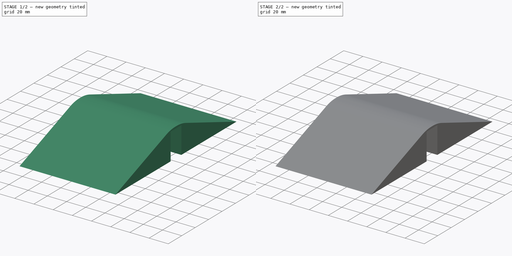
[diagram: build sequence overview — one tinted view per stage of 2, left to right]
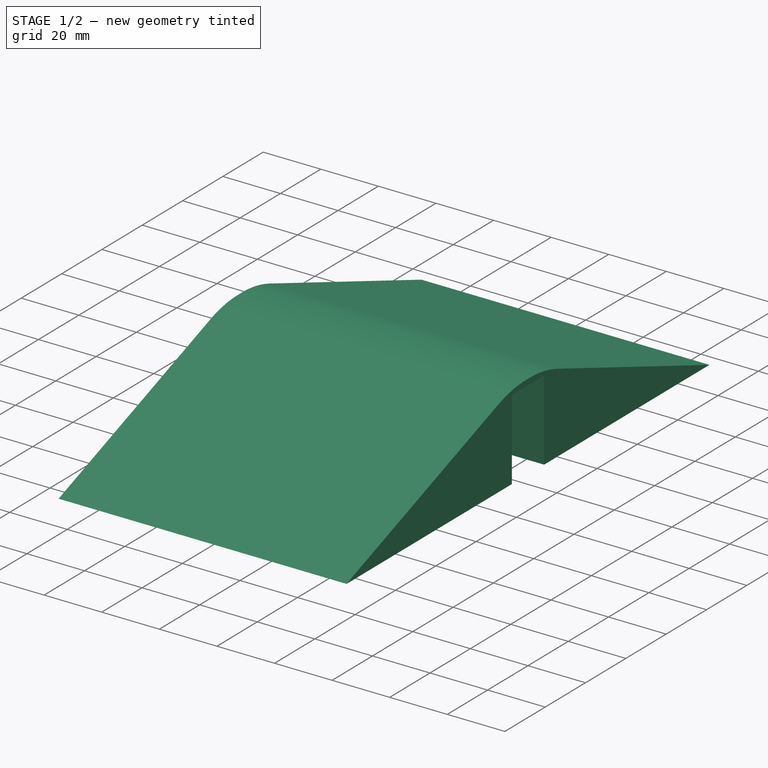
[diagram: stage 1 of 2 — iso view after this stage's code; geometry added in this stage tinted green]
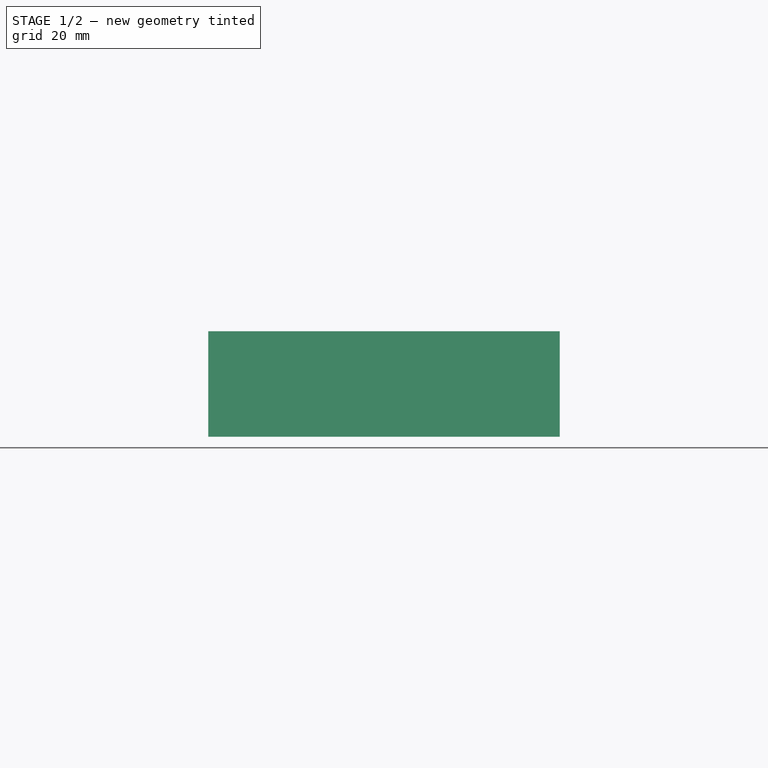
[diagram: stage 1 of 2 — front view after this stage's code; geometry added in this stage tinted green]
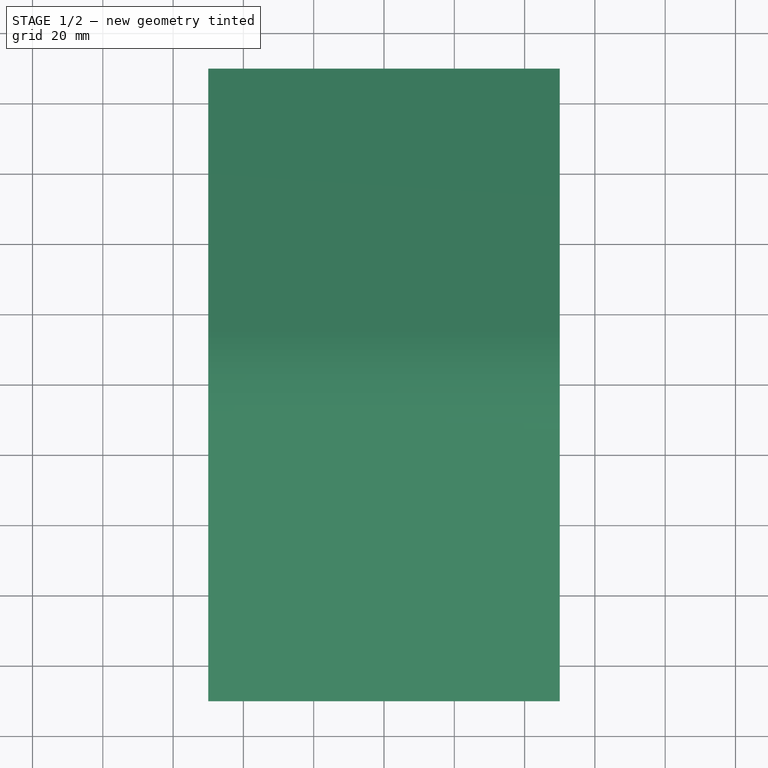
[diagram: stage 1 of 2 — top view after this stage's code; geometry added in this stage tinted green]
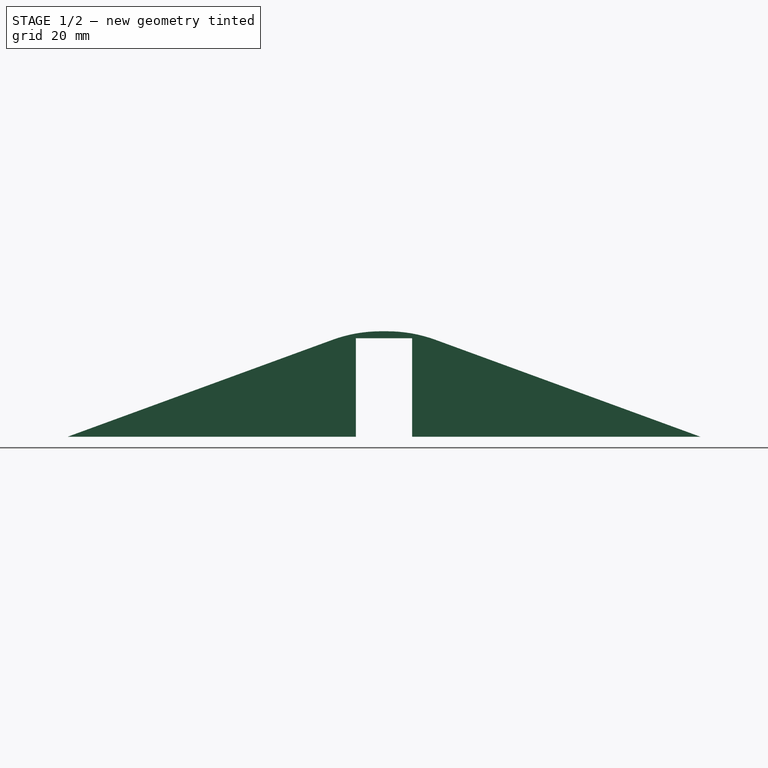
[diagram: stage 1 of 2 — right view after this stage's code; geometry added in this stage tinted green]
FCSTD DOCUMENT  (FreeCAD 0.19R22756 (Git))
Label: ikea-jonaxel-slope
License: All rights reserved
LicenseURL: http://en.wikipedia.org/wiki/All_rights_reserved
objects: Sketcher::SketchObject×2, PartDesign::Pad×2, PartDesign::Fillet×2, PartDesign::Body×2
note: 12 computed .brp shape members not serialized (recipe doc carries the construction recipe); baked Part::Feature solids carry a one-line shape summary decoded from their .brp

FEATURE [PartDesign::Body] Body  label="30deg"
  Group = -> [Sketch,Pad,Fillet]
  Origin = -> Origin
  Tip = -> Fillet
FEATURE [Sketcher::SketchObject] Sketch001
  MapMode = 5
  Placement = pos=(0,0,0) rot=(0.57735,0.57735,0.57735;2.0944rad)
  Support = -> [YZ_Plane001]
  expr: Constraints[15] = -Constraints[14] / 2
  sketch-geometry (8):
    g0: LineSegment StartX=-90 StartY=0 StartZ=0 EndX=-8 EndY=0 EndZ=0
    g1: LineSegment StartX=-8 StartY=0 StartZ=0 EndX=-8 EndY=28 EndZ=0
    g2: LineSegment StartX=-8 StartY=28 StartZ=0 EndX=8 EndY=28 EndZ=0
    g3: LineSegment StartX=8 StartY=28 StartZ=0 EndX=8 EndY=0 EndZ=0
    g4: LineSegment StartX=8 StartY=0 StartZ=0 EndX=90 EndY=0 EndZ=0
    g5: LineSegment StartX=-8 StartY=30 StartZ=0 EndX=-90 EndY=0 EndZ=0
    g6: LineSegment StartX=8 StartY=30 StartZ=0 EndX=90 EndY=0 EndZ=0
    g7: LineSegment StartX=-8 StartY=30 StartZ=0 EndX=8 EndY=30 EndZ=0
  constraints (24):
    c: PointOnObject(g0,g-1)
    c: PointOnObject(g0,g-1)
    c: Coincident(g1,g0)
    c: Vertical(g1)
    c: Coincident(g2,g1)
    c: Horizontal(g2)
    c: Coincident(g3,g2)
    c: PointOnObject(g3,g-1)
    c: Vertical(g3)
    c: Coincident(g4,g3)
    c: PointOnObject(g4,g-1)
    c: Coincident(g5,g0)
    c: Coincident(g6,g4)
    c: Equal(g0,g4)
    c: Distance(g0,g3) = 16
    c: DistanceX(g-2,g0) = -8
    c: DistanceY(g-1,g5) = 30
    c: Distance(g5,g2) = 2
    c: Equal(g5,g6)
    c: Coincident(g5,g7)
    c: Coincident(g6,g7)
    c: Parallel(g7,g2)
    c: Vertical(g5,g1)
    c: DistanceX(g0,g4) = 180
FEATURE [PartDesign::Pad] Pad001
  Direction = (1,1,1)
  Length = 100
  Length2 = 100
  Midplane = true
  Placement = pos=(0,0,0) rot=(0.57735,0.57735,0.57735;2.0944rad)
  Profile = -> Sketch001
  Type = 0
FEATURE [PartDesign::Fillet] Fillet001
  Base = -> Pad001 [Edge20,Edge17]
  BaseFeature = -> Pad001
  Placement = pos=(0,0,0) rot=(0.57735,0.57735,0.57735;2.0944rad)
  Radius = 40
  SupportTransform = false
FEATURE [PartDesign::Body] Body001  label="15deg"
  Group = -> [Sketch001,Pad001,Fillet001]
  Origin = -> Origin001
  Tip = -> Fillet001
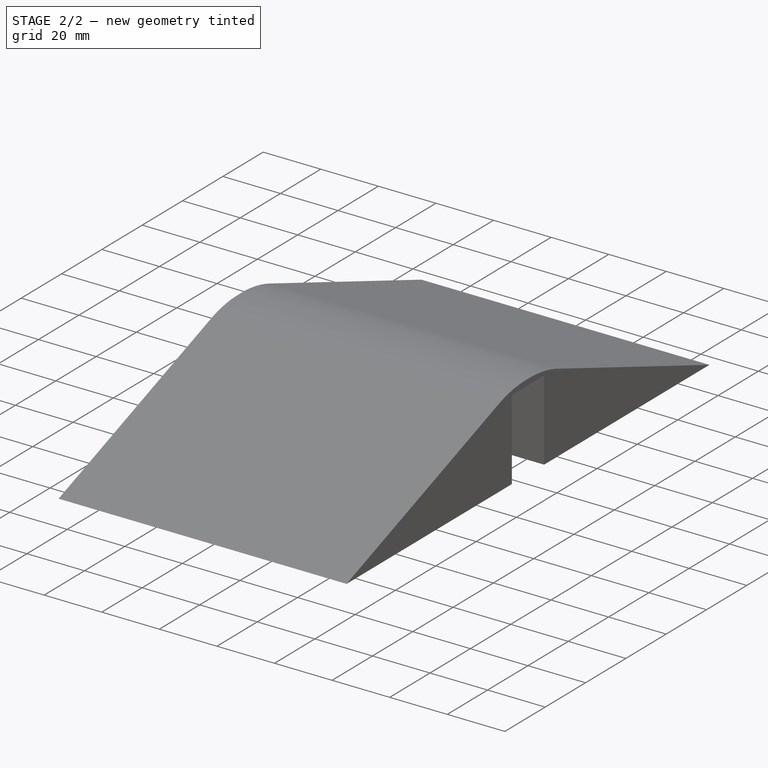
[diagram: stage 2 of 2 — iso view after this stage's code; geometry added in this stage tinted green]
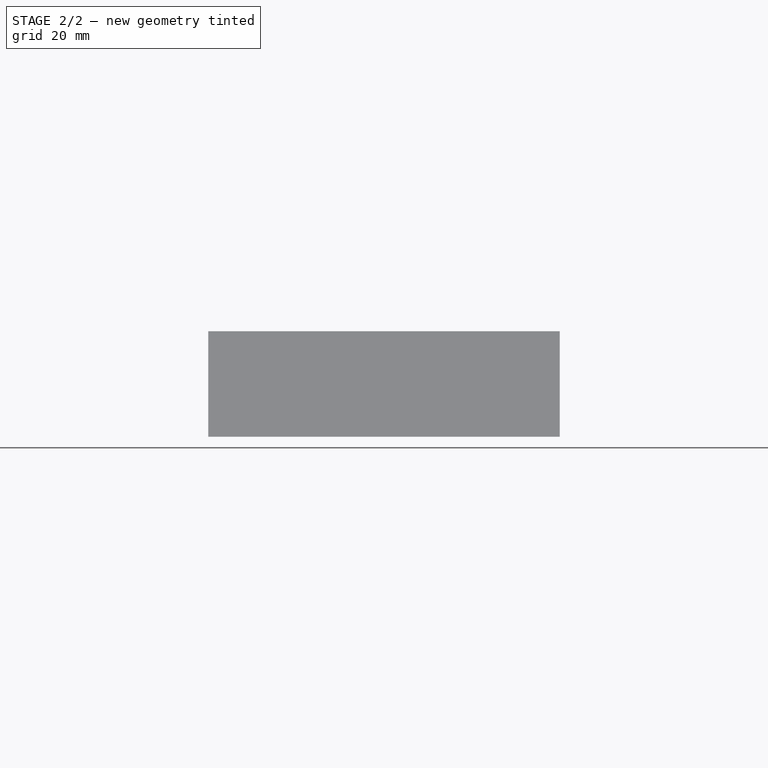
[diagram: stage 2 of 2 — front view after this stage's code; geometry added in this stage tinted green]
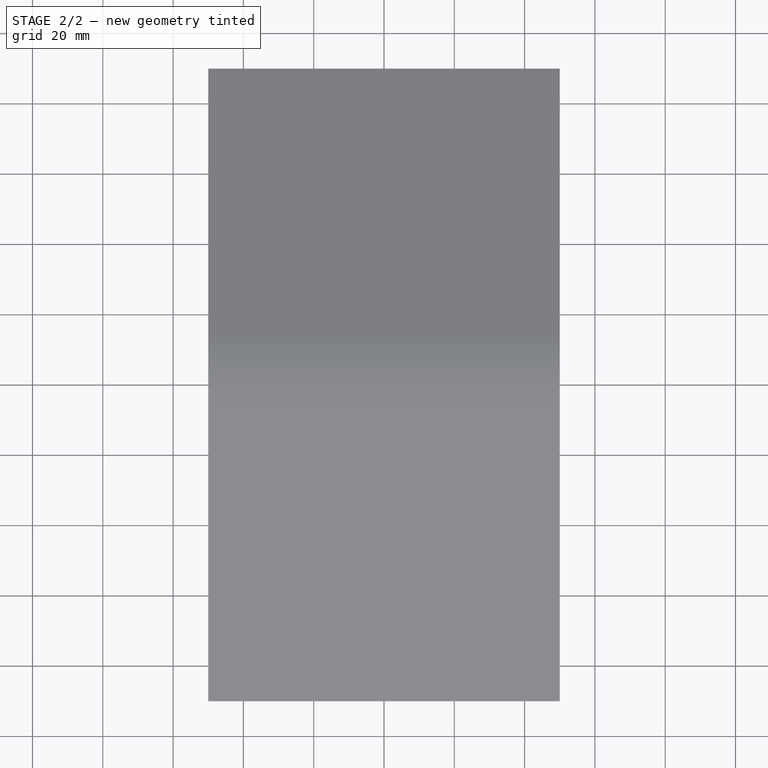
[diagram: stage 2 of 2 — top view after this stage's code; geometry added in this stage tinted green]
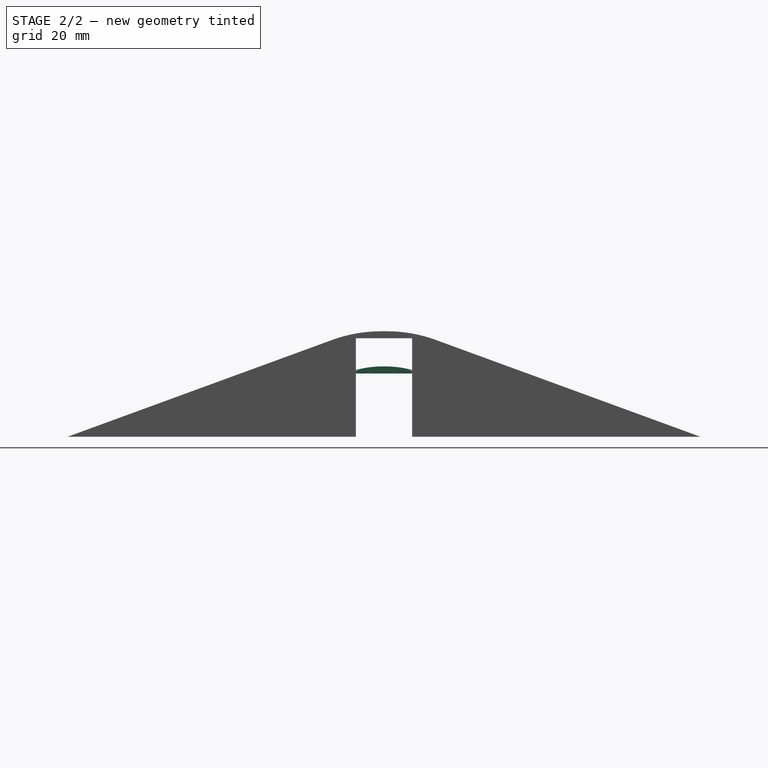
[diagram: stage 2 of 2 — right view after this stage's code; geometry added in this stage tinted green]
FEATURE [Sketcher::SketchObject] Sketch
  MapMode = 5
  Placement = pos=(0,0,0) rot=(0.57735,0.57735,0.57735;2.0944rad)
  Support = -> [YZ_Plane]
  expr: Constraints[15] = -Constraints[14] / 2
  sketch-geometry (8):
    g0: LineSegment StartX=-42.641 StartY=0 StartZ=0 EndX=-8 EndY=0 EndZ=0
    g1: LineSegment StartX=-8 StartY=0 StartZ=0 EndX=-8 EndY=18 EndZ=0
    g2: LineSegment StartX=-8 StartY=18 StartZ=0 EndX=8 EndY=18 EndZ=0
    g3: LineSegment StartX=8 StartY=18 StartZ=0 EndX=8 EndY=0 EndZ=0
    g4: LineSegment StartX=8 StartY=0 StartZ=0 EndX=42.641 EndY=0 EndZ=0
    g5: LineSegment StartX=-8 StartY=20 StartZ=0 EndX=-42.641 EndY=0 EndZ=0
    g6: LineSegment StartX=8 StartY=20 StartZ=0 EndX=42.641 EndY=0 EndZ=0
    g7: LineSegment StartX=-8 StartY=20 StartZ=0 EndX=8 EndY=20 EndZ=0
  constraints (24):
    c: PointOnObject(g0,g-1)
    c: PointOnObject(g0,g-1)
    c: Coincident(g1,g0)
    c: Vertical(g1)
    c: Coincident(g2,g1)
    c: Horizontal(g2)
    c: Coincident(g3,g2)
    c: PointOnObject(g3,g-1)
    c: Vertical(g3)
    c: Coincident(g4,g3)
    c: PointOnObject(g4,g-1)
    c: Coincident(g5,g0)
    c: Coincident(g6,g4)
    c: Equal(g0,g4)
    c: Distance(g0,g3) = 16
    c: DistanceX(g-2,g0) = -8
    c: DistanceY(g-1,g5) = 20
    c: Distance(g5,g2) = 2
    c: Equal(g5,g6)
    c: Angle(g0,g5) = 0.523599
    c: Coincident(g5,g7)
    c: Coincident(g6,g7)
    c: Parallel(g7,g2)
    c: Vertical(g5,g1)
FEATURE [PartDesign::Pad] Pad
  Direction = (1,1,1)
  Length = 50
  Length2 = 100
  Midplane = true
  Placement = pos=(0,0,0) rot=(0.57735,0.57735,0.57735;2.0944rad)
  Profile = -> Sketch
  Type = 0
FEATURE [PartDesign::Fillet] Fillet
  Base = -> Pad [Edge20,Edge17]
  BaseFeature = -> Pad
  Placement = pos=(0,0,0) rot=(0.57735,0.57735,0.57735;2.0944rad)
  Radius = 28
  SupportTransform = false
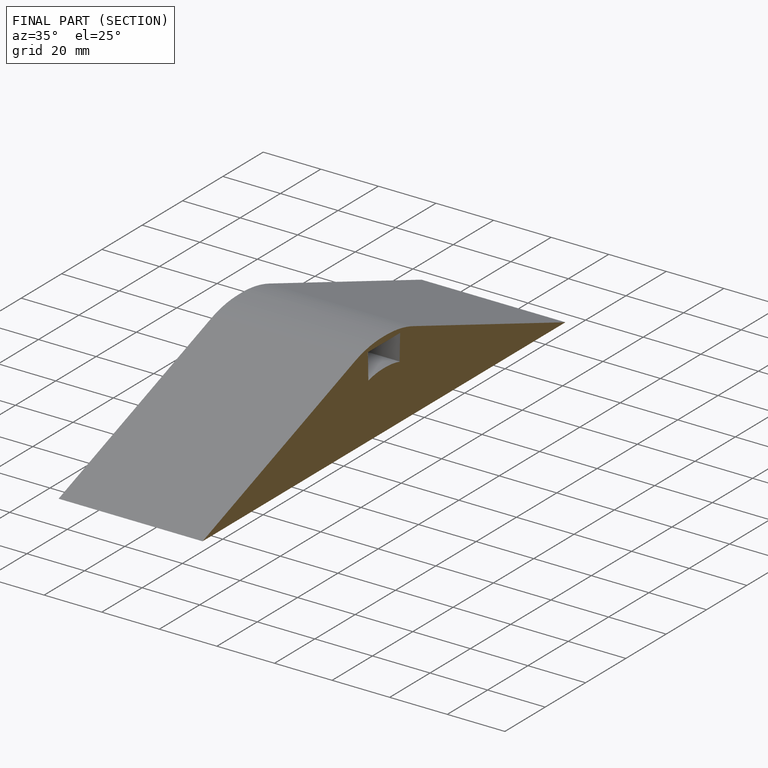
[diagram: finished part — half-section view (interior)]
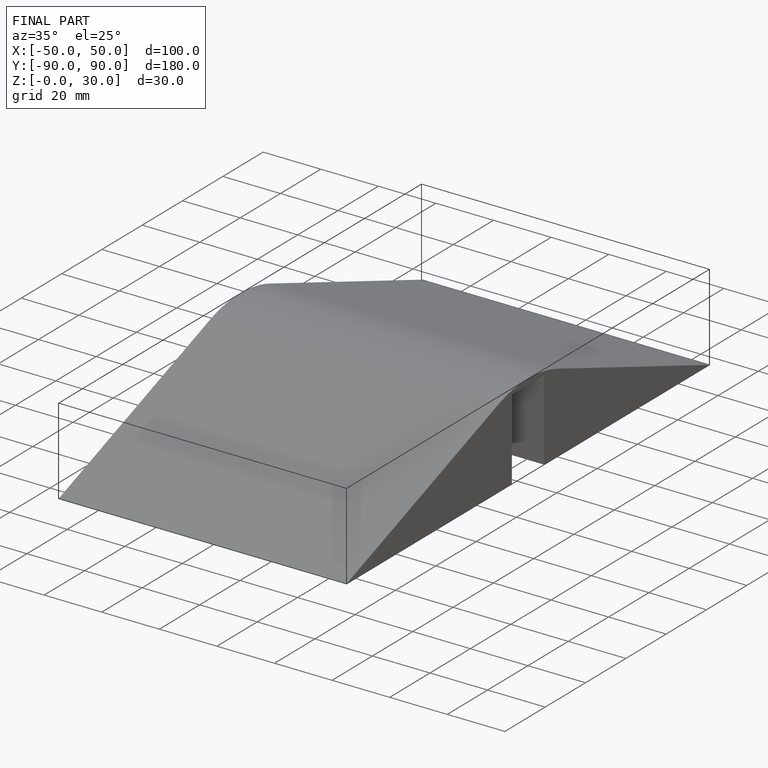
[diagram: finished part — iso view with bounding-box wireframe]
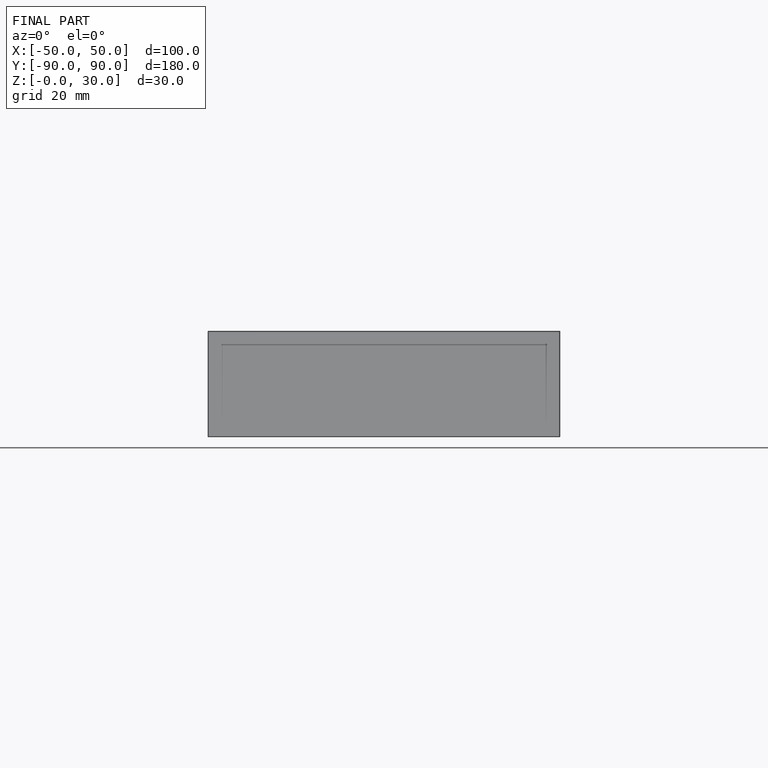
[diagram: finished part — front view with bounding-box wireframe]
